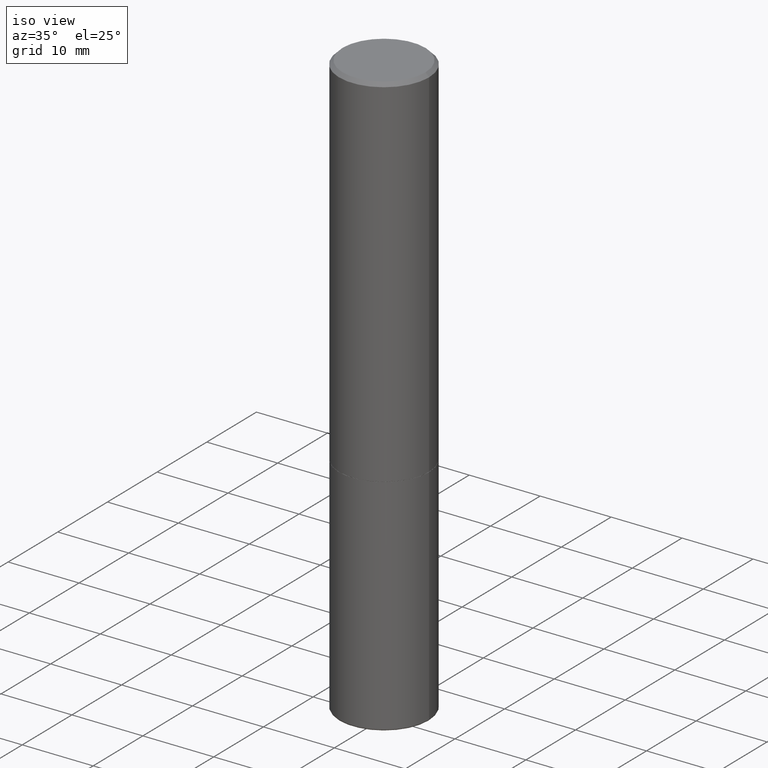
[diagram: clean part render]
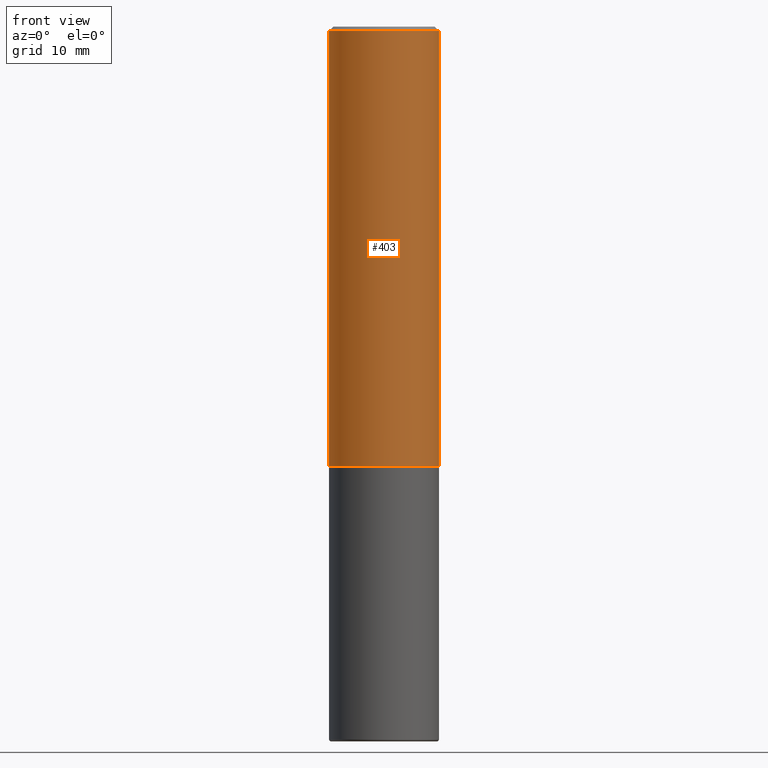
[diagram: tour spotlight — one face highlighted and labeled with its STEP entity id]
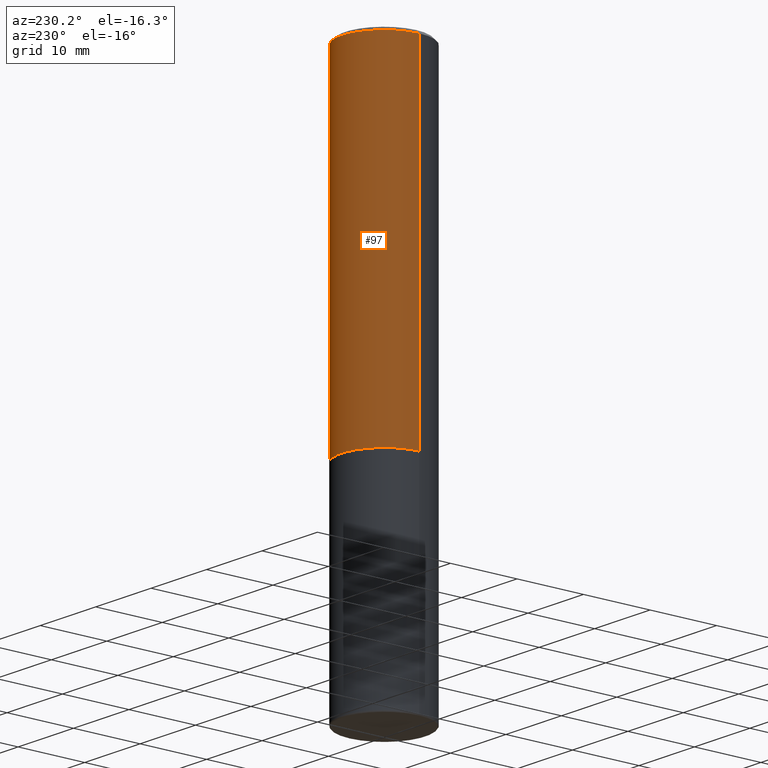
[diagram: tour spotlight — one face highlighted and labeled with its STEP entity id]
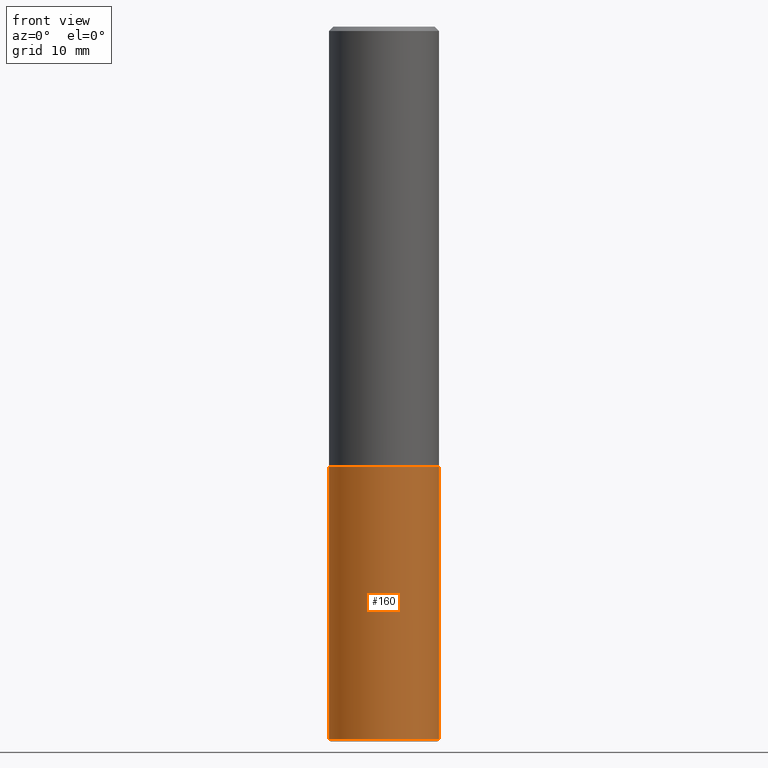
[diagram: tour spotlight — one face highlighted and labeled with its STEP entity id]
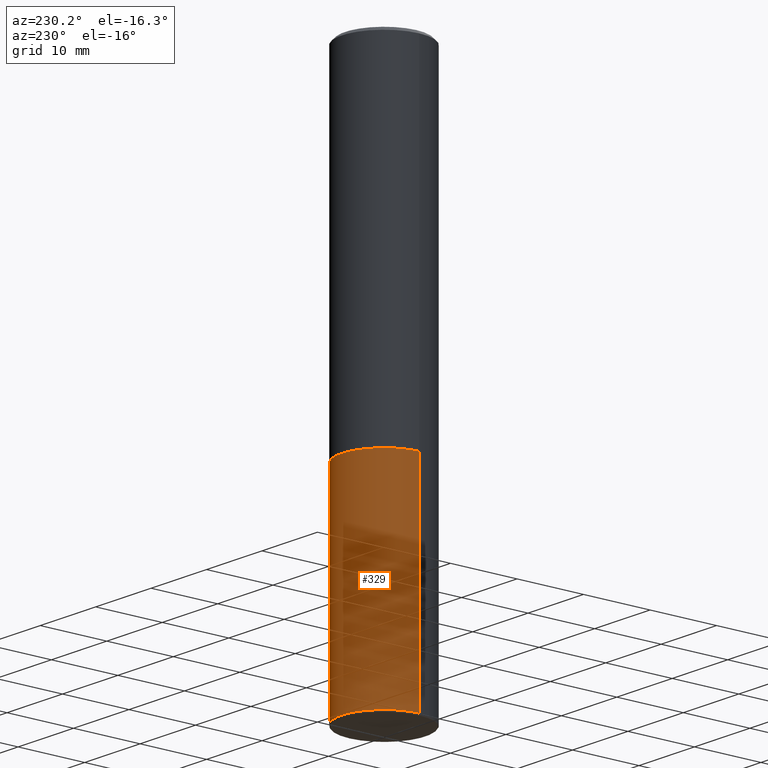
[diagram: tour spotlight — one face highlighted and labeled with its STEP entity id]
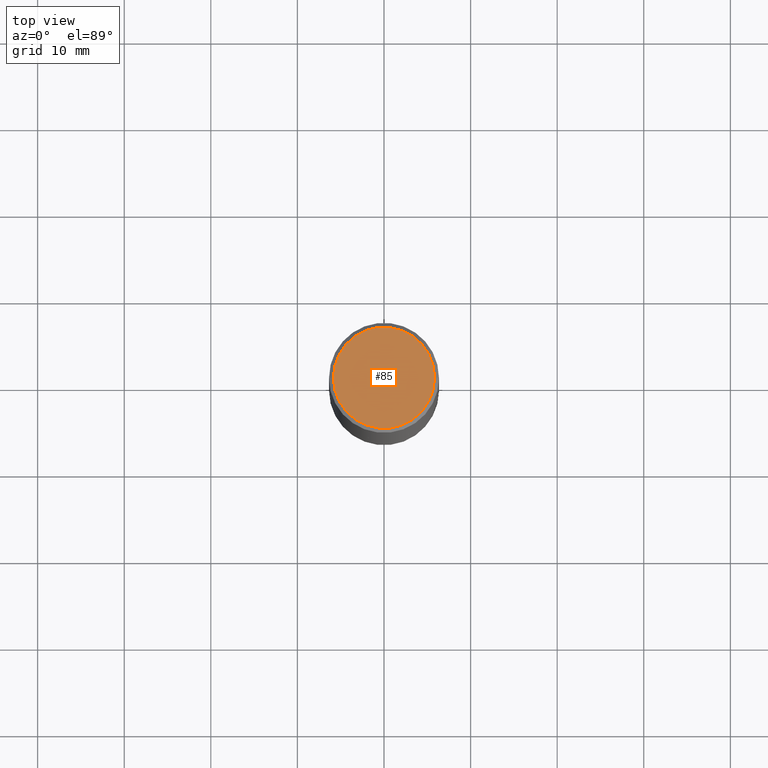
[diagram: tour spotlight — one face highlighted and labeled with its STEP entity id]
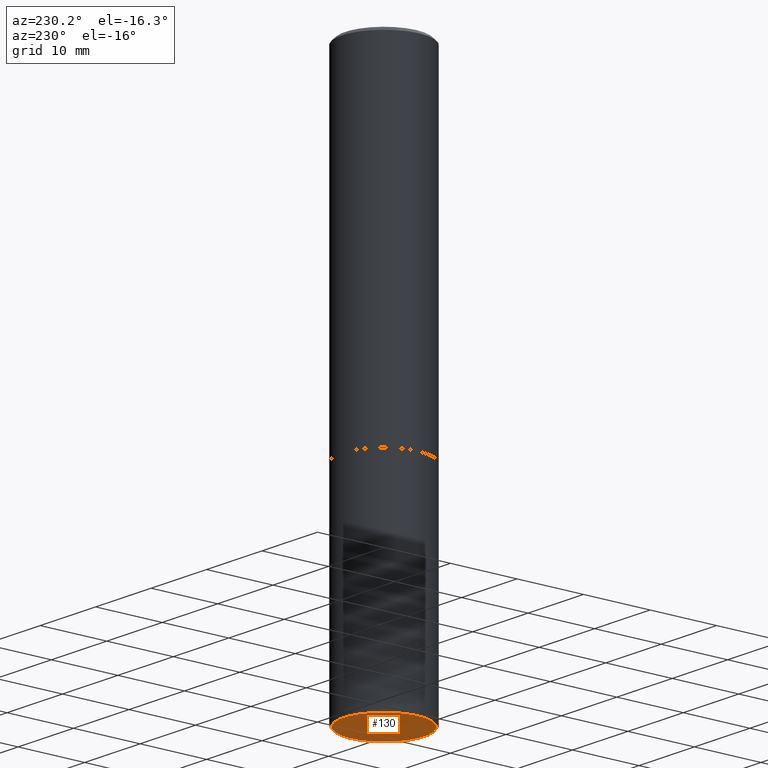
[diagram: tour spotlight — one face highlighted and labeled with its STEP entity id]
A machine part: a face-by-face anatomy tour. The part has 14 B-rep faces; the first image is the clean iso view, then the 6 largest visible faces are spotlighted one at a time (largest first), each with its STEP entity span.

Face 1 — front view, entity #403. In plain terms, the highlighted cylindrical surface (partial cylindrical patch) has radius 6.35 mm, axis along (-0, 0, 1).
Definition (entity closure, byte-faithful):
#13 = CYLINDRICAL_SURFACE ( 'NONE', #321, 0.2500000000000001110 ) ;
#15 = FACE_OUTER_BOUND ( 'NONE', #61, .T. ) ;
#16 = VECTOR ( 'NONE', #74, 39.37007874015748143 ) ;
#34 = CARTESIAN_POINT ( 'NONE',  ( 4.888492143564088712E-29, -6.979471196347448158E-15, -1.999000000000000110 ) ) ;
#38 = DIRECTION ( 'NONE',  ( 1.000000000000000000, -6.982962677686267499E-15, 4.876176775795936353E-29 ) ) ;
#52 = CIRCLE ( 'NONE', #343, 0.2500000000000002220 ) ;
#61 = EDGE_LOOP ( 'NONE', ( #326, #121, #188, #327 ) ) ;
#74 = DIRECTION ( 'NONE',  ( -2.445468806185136877E-29, 3.491481338843145188E-15, 1.000000000000000000 ) ) ;
#89 = DIRECTION ( 'NONE',  ( -2.445468806185136597E-29, 3.491481338843145583E-15, 1.000000000000000000 ) ) ;
#93 = VERTEX_POINT ( 'NONE', #270 ) ;
#99 = LINE ( 'NONE', #170, #16 ) ;
#109 = CARTESIAN_POINT ( 'NONE',  ( -0.2500000000000000000, 1.675911042644703577E-15, -0.02000000000000005593 ) ) ;
#116 = CARTESIAN_POINT ( 'NONE',  ( 4.890937612370287172E-31, -6.982962677686310098E-17, -0.02000000000000005593 ) ) ;
#117 = AXIS2_PLACEMENT_3D ( 'NONE', #116, #89, #158 ) ;
#118 = VERTEX_POINT ( 'NONE', #109 ) ;
#121 = ORIENTED_EDGE ( 'NONE', *, *, #189, .T. ) ;
#123 = DIRECTION ( 'NONE',  ( -2.445468806185136597E-29, 3.491481338843145583E-15, 1.000000000000000000 ) ) ;
#125 = DIRECTION ( 'NONE',  ( -2.445468806185136877E-29, 3.491481338843145188E-15, 1.000000000000000000 ) ) ;
#150 = LINE ( 'NONE', #153, #320 ) ;
#153 = CARTESIAN_POINT ( 'NONE',  ( 0.2500000000000001110, -1.745740669421567664E-15, 1.219044193948984649E-29 ) ) ;
#156 = EDGE_CURVE ( 'NONE', #252, #93, #150, .T. ) ;
#158 = DIRECTION ( 'NONE',  ( 1.000000000000000000, -6.982962677686266711E-15, 0.000000000000000000 ) ) ;
#168 = CARTESIAN_POINT ( 'NONE',  ( -0.2500000000000002220, -1.748293572161901516E-15, -1.999000000000000110 ) ) ;
#170 = CARTESIAN_POINT ( 'NONE',  ( -0.2500000000000001110, 1.776356839400251254E-15, -1.229733772563727146E-29 ) ) ;
#188 = ORIENTED_EDGE ( 'NONE', *, *, #156, .T. ) ;
#189 = EDGE_CURVE ( 'NONE', #357, #252, #52, .T. ) ;
#190 = CARTESIAN_POINT ( 'NONE',  ( 0.2500000000000002220, -8.725211865769017202E-15, -1.999000000000000110 ) ) ;
#193 = CARTESIAN_POINT ( 'NONE',  ( 0.000000000000000000, 0.000000000000000000, 0.000000000000000000 ) ) ;
#210 = DIRECTION ( 'NONE',  ( 1.000000000000000000, -6.982962677686268288E-15, 0.000000000000000000 ) ) ;
#252 = VERTEX_POINT ( 'NONE', #190 ) ;
#267 = EDGE_CURVE ( 'NONE', #118, #93, #360, .T. ) ;
#270 = CARTESIAN_POINT ( 'NONE',  ( 0.2500000000000000000, -1.784954126219746189E-15, -0.02000000000000005593 ) ) ;
#319 = DIRECTION ( 'NONE',  ( -2.445468806185136597E-29, 3.491481338843145583E-15, 1.000000000000000000 ) ) ;
#320 = VECTOR ( 'NONE', #125, 39.37007874015748143 ) ;
#321 = AXIS2_PLACEMENT_3D ( 'NONE', #193, #319, #38 ) ;
#326 = ORIENTED_EDGE ( 'NONE', *, *, #374, .F. ) ;
#327 = ORIENTED_EDGE ( 'NONE', *, *, #267, .F. ) ;
#343 = AXIS2_PLACEMENT_3D ( 'NONE', #34, #123, #210 ) ;
#357 = VERTEX_POINT ( 'NONE', #168 ) ;
#360 = CIRCLE ( 'NONE', #117, 0.2500000000000000000 ) ;
#374 = EDGE_CURVE ( 'NONE', #357, #118, #99, .T. ) ;
#403 = ADVANCED_FACE ( 'NONE', ( #15 ), #13, .T. ) ;

Face 2 — auxiliary view, entity #97. In plain terms, the highlighted cylindrical surface (partial cylindrical patch) has radius 6.35 mm, axis along (-0, 0, 1).
Definition (entity closure, byte-faithful):
#10 = AXIS2_PLACEMENT_3D ( 'NONE', #137, #266, #404 ) ;
#16 = VECTOR ( 'NONE', #74, 39.37007874015748143 ) ;
#19 = CYLINDRICAL_SURFACE ( 'NONE', #10, 0.2500000000000001110 ) ;
#25 = DIRECTION ( 'NONE',  ( 1.000000000000000000, -6.982962677686266711E-15, 0.000000000000000000 ) ) ;
#32 = ORIENTED_EDGE ( 'NONE', *, *, #374, .T. ) ;
#33 = EDGE_CURVE ( 'NONE', #93, #118, #351, .T. ) ;
#47 = FACE_OUTER_BOUND ( 'NONE', #386, .T. ) ;
#58 = AXIS2_PLACEMENT_3D ( 'NONE', #237, #151, #72 ) ;
#72 = DIRECTION ( 'NONE',  ( 1.000000000000000000, -6.982962677686268288E-15, 0.000000000000000000 ) ) ;
#74 = DIRECTION ( 'NONE',  ( -2.445468806185136877E-29, 3.491481338843145188E-15, 1.000000000000000000 ) ) ;
#93 = VERTEX_POINT ( 'NONE', #270 ) ;
#97 = ADVANCED_FACE ( 'NONE', ( #47 ), #19, .T. ) ;
#99 = LINE ( 'NONE', #170, #16 ) ;
#109 = CARTESIAN_POINT ( 'NONE',  ( -0.2500000000000000000, 1.675911042644703577E-15, -0.02000000000000005593 ) ) ;
#118 = VERTEX_POINT ( 'NONE', #109 ) ;
#125 = DIRECTION ( 'NONE',  ( -2.445468806185136877E-29, 3.491481338843145188E-15, 1.000000000000000000 ) ) ;
#126 = EDGE_CURVE ( 'NONE', #252, #357, #233, .T. ) ;
#137 = CARTESIAN_POINT ( 'NONE',  ( 0.000000000000000000, 0.000000000000000000, 0.000000000000000000 ) ) ;
#150 = LINE ( 'NONE', #153, #320 ) ;
#151 = DIRECTION ( 'NONE',  ( -2.445468806185136597E-29, 3.491481338843145583E-15, 1.000000000000000000 ) ) ;
#153 = CARTESIAN_POINT ( 'NONE',  ( 0.2500000000000001110, -1.745740669421567664E-15, 1.219044193948984649E-29 ) ) ;
#156 = EDGE_CURVE ( 'NONE', #252, #93, #150, .T. ) ;
#168 = CARTESIAN_POINT ( 'NONE',  ( -0.2500000000000002220, -1.748293572161901516E-15, -1.999000000000000110 ) ) ;
#170 = CARTESIAN_POINT ( 'NONE',  ( -0.2500000000000001110, 1.776356839400251254E-15, -1.229733772563727146E-29 ) ) ;
#175 = DIRECTION ( 'NONE',  ( -2.445468806185136597E-29, 3.491481338843145583E-15, 1.000000000000000000 ) ) ;
#190 = CARTESIAN_POINT ( 'NONE',  ( 0.2500000000000002220, -8.725211865769017202E-15, -1.999000000000000110 ) ) ;
#233 = CIRCLE ( 'NONE', #58, 0.2500000000000002220 ) ;
#237 = CARTESIAN_POINT ( 'NONE',  ( 4.888492143564088712E-29, -6.979471196347448158E-15, -1.999000000000000110 ) ) ;
#248 = ORIENTED_EDGE ( 'NONE', *, *, #33, .F. ) ;
#252 = VERTEX_POINT ( 'NONE', #190 ) ;
#261 = AXIS2_PLACEMENT_3D ( 'NONE', #408, #175, #25 ) ;
#266 = DIRECTION ( 'NONE',  ( -2.445468806185136597E-29, 3.491481338843145583E-15, 1.000000000000000000 ) ) ;
#270 = CARTESIAN_POINT ( 'NONE',  ( 0.2500000000000000000, -1.784954126219746189E-15, -0.02000000000000005593 ) ) ;
#279 = ORIENTED_EDGE ( 'NONE', *, *, #126, .T. ) ;
#320 = VECTOR ( 'NONE', #125, 39.37007874015748143 ) ;
#351 = CIRCLE ( 'NONE', #261, 0.2500000000000000000 ) ;
#357 = VERTEX_POINT ( 'NONE', #168 ) ;
#374 = EDGE_CURVE ( 'NONE', #357, #118, #99, .T. ) ;
#386 = EDGE_LOOP ( 'NONE', ( #279, #32, #248, #399 ) ) ;
#399 = ORIENTED_EDGE ( 'NONE', *, *, #156, .F. ) ;
#404 = DIRECTION ( 'NONE',  ( 1.000000000000000000, -6.982962677686267499E-15, 4.876176775795936353E-29 ) ) ;
#408 = CARTESIAN_POINT ( 'NONE',  ( 4.890937612370287172E-31, -6.982962677686310098E-17, -0.02000000000000005593 ) ) ;

Face 3 — front view, entity #160. In plain terms, the highlighted cylindrical surface (partial cylindrical patch) has radius 6.35 mm, axis along (-0, 0, 1).
Definition (entity closure, byte-faithful):
#8 = EDGE_CURVE ( 'NONE', #212, #257, #44, .T. ) ;
#37 = VECTOR ( 'NONE', #356, 39.37007874015748143 ) ;
#43 = LINE ( 'NONE', #67, #301 ) ;
#44 = CIRCLE ( 'NONE', #395, 0.2500000000000000000 ) ;
#62 = CARTESIAN_POINT ( 'NONE',  ( 0.000000000000000000, 0.000000000000000000, 0.000000000000000000 ) ) ;
#67 = CARTESIAN_POINT ( 'NONE',  ( -0.2500000000000000000, 1.776356839400250465E-15, -1.229733772563726445E-29 ) ) ;
#81 = CARTESIAN_POINT ( 'NONE',  ( 4.890937612370273754E-29, -6.982962677686291954E-15, -2.000000000000000444 ) ) ;
#98 = DIRECTION ( 'NONE',  ( -2.445468806185136597E-29, 3.491481338843145583E-15, 1.000000000000000000 ) ) ;
#129 = DIRECTION ( 'NONE',  ( 1.000000000000000000, -6.982962677686270655E-15, 0.000000000000000000 ) ) ;
#145 = DIRECTION ( 'NONE',  ( 1.000000000000000000, -6.982962677686266711E-15, 0.000000000000000000 ) ) ;
#152 = CYLINDRICAL_SURFACE ( 'NONE', #379, 0.2500000000000000000 ) ;
#155 = EDGE_LOOP ( 'NONE', ( #201, #245, #227, #382 ) ) ;
#160 = ADVANCED_FACE ( 'NONE', ( #387 ), #152, .T. ) ;
#171 = CIRCLE ( 'NONE', #203, 0.2500000000000000000 ) ;
#185 = CARTESIAN_POINT ( 'NONE',  ( 0.2499999999999998890, -1.305814020727335945E-14, -3.239999999999999769 ) ) ;
#197 = CARTESIAN_POINT ( 'NONE',  ( 0.2500000000000000000, -1.745740669421566678E-15, 1.219044193948983948E-29 ) ) ;
#201 = ORIENTED_EDGE ( 'NONE', *, *, #392, .F. ) ;
#203 = AXIS2_PLACEMENT_3D ( 'NONE', #318, #98, #129 ) ;
#212 = VERTEX_POINT ( 'NONE', #354 ) ;
#213 = VERTEX_POINT ( 'NONE', #185 ) ;
#227 = ORIENTED_EDGE ( 'NONE', *, *, #385, .T. ) ;
#245 = ORIENTED_EDGE ( 'NONE', *, *, #335, .T. ) ;
#257 = VERTEX_POINT ( 'NONE', #353 ) ;
#278 = CARTESIAN_POINT ( 'NONE',  ( -0.2499999999999998890, -9.536042698451540734E-15, -3.239999999999999769 ) ) ;
#280 = VERTEX_POINT ( 'NONE', #278 ) ;
#301 = VECTOR ( 'NONE', #361, 39.37007874015748143 ) ;
#311 = DIRECTION ( 'NONE',  ( 1.000000000000000000, -6.982962677686266711E-15, 4.876176775795935793E-29 ) ) ;
#317 = DIRECTION ( 'NONE',  ( -2.445468806185136597E-29, 3.491481338843145583E-15, 1.000000000000000000 ) ) ;
#318 = CARTESIAN_POINT ( 'NONE',  ( 7.923318932039842394E-29, -1.131239953785179120E-14, -3.239999999999999769 ) ) ;
#335 = EDGE_CURVE ( 'NONE', #280, #213, #171, .T. ) ;
#338 = DIRECTION ( 'NONE',  ( -2.445468806185136597E-29, 3.491481338843145583E-15, 1.000000000000000000 ) ) ;
#353 = CARTESIAN_POINT ( 'NONE',  ( 0.2500000000000000000, -8.728703347107858632E-15, -2.000000000000000444 ) ) ;
#354 = CARTESIAN_POINT ( 'NONE',  ( -0.2500000000000000000, -7.371324268368791112E-15, -2.000000000000000444 ) ) ;
#356 = DIRECTION ( 'NONE',  ( -2.445468806185136877E-29, 3.491481338843145188E-15, 1.000000000000000000 ) ) ;
#361 = DIRECTION ( 'NONE',  ( -2.445468806185136877E-29, 3.491481338843145188E-15, 1.000000000000000000 ) ) ;
#379 = AXIS2_PLACEMENT_3D ( 'NONE', #62, #317, #311 ) ;
#382 = ORIENTED_EDGE ( 'NONE', *, *, #8, .F. ) ;
#385 = EDGE_CURVE ( 'NONE', #213, #257, #391, .T. ) ;
#387 = FACE_OUTER_BOUND ( 'NONE', #155, .T. ) ;
#391 = LINE ( 'NONE', #197, #37 ) ;
#392 = EDGE_CURVE ( 'NONE', #280, #212, #43, .T. ) ;
#395 = AXIS2_PLACEMENT_3D ( 'NONE', #81, #338, #145 ) ;

Face 4 — auxiliary view, entity #329. In plain terms, the highlighted cylindrical surface (partial cylindrical patch) has radius 6.35 mm, axis along (-0, 0, 1).
Definition (entity closure, byte-faithful):
#3 = CARTESIAN_POINT ( 'NONE',  ( 4.890937612370273754E-29, -6.982962677686291954E-15, -2.000000000000000444 ) ) ;
#9 = ORIENTED_EDGE ( 'NONE', *, *, #385, .F. ) ;
#37 = VECTOR ( 'NONE', #356, 39.37007874015748143 ) ;
#43 = LINE ( 'NONE', #67, #301 ) ;
#59 = DIRECTION ( 'NONE',  ( 1.000000000000000000, -6.982962677686266711E-15, 0.000000000000000000 ) ) ;
#63 = CIRCLE ( 'NONE', #142, 0.2500000000000000000 ) ;
#67 = CARTESIAN_POINT ( 'NONE',  ( -0.2500000000000000000, 1.776356839400250465E-15, -1.229733772563726445E-29 ) ) ;
#69 = AXIS2_PLACEMENT_3D ( 'NONE', #394, #101, #76 ) ;
#75 = EDGE_LOOP ( 'NONE', ( #127, #163, #79, #9 ) ) ;
#76 = DIRECTION ( 'NONE',  ( 1.000000000000000000, -6.982962677686266711E-15, 4.876176775795935793E-29 ) ) ;
#79 = ORIENTED_EDGE ( 'NONE', *, *, #157, .F. ) ;
#101 = DIRECTION ( 'NONE',  ( -2.445468806185136597E-29, 3.491481338843145583E-15, 1.000000000000000000 ) ) ;
#127 = ORIENTED_EDGE ( 'NONE', *, *, #310, .T. ) ;
#142 = AXIS2_PLACEMENT_3D ( 'NONE', #3, #253, #59 ) ;
#157 = EDGE_CURVE ( 'NONE', #257, #212, #63, .T. ) ;
#163 = ORIENTED_EDGE ( 'NONE', *, *, #392, .T. ) ;
#172 = CARTESIAN_POINT ( 'NONE',  ( 7.923318932039842394E-29, -1.131239953785179120E-14, -3.239999999999999769 ) ) ;
#185 = CARTESIAN_POINT ( 'NONE',  ( 0.2499999999999998890, -1.305814020727335945E-14, -3.239999999999999769 ) ) ;
#197 = CARTESIAN_POINT ( 'NONE',  ( 0.2500000000000000000, -1.745740669421566678E-15, 1.219044193948983948E-29 ) ) ;
#212 = VERTEX_POINT ( 'NONE', #354 ) ;
#213 = VERTEX_POINT ( 'NONE', #185 ) ;
#253 = DIRECTION ( 'NONE',  ( -2.445468806185136597E-29, 3.491481338843145583E-15, 1.000000000000000000 ) ) ;
#257 = VERTEX_POINT ( 'NONE', #353 ) ;
#260 = DIRECTION ( 'NONE',  ( -2.445468806185136597E-29, 3.491481338843145583E-15, 1.000000000000000000 ) ) ;
#264 = FACE_OUTER_BOUND ( 'NONE', #75, .T. ) ;
#278 = CARTESIAN_POINT ( 'NONE',  ( -0.2499999999999998890, -9.536042698451540734E-15, -3.239999999999999769 ) ) ;
#280 = VERTEX_POINT ( 'NONE', #278 ) ;
#301 = VECTOR ( 'NONE', #361, 39.37007874015748143 ) ;
#310 = EDGE_CURVE ( 'NONE', #213, #280, #314, .T. ) ;
#314 = CIRCLE ( 'NONE', #388, 0.2500000000000000000 ) ;
#329 = ADVANCED_FACE ( 'NONE', ( #264 ), #364, .T. ) ;
#353 = CARTESIAN_POINT ( 'NONE',  ( 0.2500000000000000000, -8.728703347107858632E-15, -2.000000000000000444 ) ) ;
#354 = CARTESIAN_POINT ( 'NONE',  ( -0.2500000000000000000, -7.371324268368791112E-15, -2.000000000000000444 ) ) ;
#356 = DIRECTION ( 'NONE',  ( -2.445468806185136877E-29, 3.491481338843145188E-15, 1.000000000000000000 ) ) ;
#361 = DIRECTION ( 'NONE',  ( -2.445468806185136877E-29, 3.491481338843145188E-15, 1.000000000000000000 ) ) ;
#364 = CYLINDRICAL_SURFACE ( 'NONE', #69, 0.2500000000000000000 ) ;
#385 = EDGE_CURVE ( 'NONE', #213, #257, #391, .T. ) ;
#388 = AXIS2_PLACEMENT_3D ( 'NONE', #172, #260, #398 ) ;
#391 = LINE ( 'NONE', #197, #37 ) ;
#392 = EDGE_CURVE ( 'NONE', #280, #212, #43, .T. ) ;
#394 = CARTESIAN_POINT ( 'NONE',  ( 0.000000000000000000, 0.000000000000000000, 0.000000000000000000 ) ) ;
#398 = DIRECTION ( 'NONE',  ( 1.000000000000000000, -6.982962677686270655E-15, 0.000000000000000000 ) ) ;

Face 5 — top view, entity #85. In plain terms, the highlighted planar face has unit normal (0, -0, -1).
Definition (entity closure, byte-faithful):
#31 = DIRECTION ( 'NONE',  ( -2.445468806185136597E-29, 3.491481338843145583E-15, 1.000000000000000000 ) ) ;
#56 = DIRECTION ( 'NONE',  ( 2.438088387897960049E-29, -3.491481338843145188E-15, -1.000000000000000000 ) ) ;
#71 = CARTESIAN_POINT ( 'NONE',  ( 0.2299999999999999267, -1.681434332853598617E-15, 4.695363739111602110E-17 ) ) ;
#77 = AXIS2_PLACEMENT_3D ( 'NONE', #220, #284, #165 ) ;
#85 = ADVANCED_FACE ( 'NONE', ( #111 ), #296, .F. ) ;
#111 = FACE_OUTER_BOUND ( 'NONE', #372, .T. ) ;
#165 = DIRECTION ( 'NONE',  ( 1.000000000000000000, -6.982962677686267499E-15, 4.875813741439101456E-29 ) ) ;
#167 = CIRCLE ( 'NONE', #223, 0.2299999999999999267 ) ;
#173 = ORIENTED_EDGE ( 'NONE', *, *, #259, .T. ) ;
#184 = CARTESIAN_POINT ( 'NONE',  ( -1.148236555768741665E-45, 1.639377487418492057E-31, 4.695363739110452099E-17 ) ) ;
#198 = AXIS2_PLACEMENT_3D ( 'NONE', #243, #56, #363 ) ;
#220 = CARTESIAN_POINT ( 'NONE',  ( -1.148236555768741665E-45, 1.639377487418492057E-31, 4.695363739110452099E-17 ) ) ;
#223 = AXIS2_PLACEMENT_3D ( 'NONE', #184, #31, #315 ) ;
#239 = ORIENTED_EDGE ( 'NONE', *, *, #384, .T. ) ;
#243 = CARTESIAN_POINT ( 'NONE',  ( 1.606081415867840870E-15, 0.2299999999999999267, -7.795638892383710465E-16 ) ) ;
#251 = CARTESIAN_POINT ( 'NONE',  ( -0.2299999999999999267, 1.640996229256272519E-15, 4.695363739109317495E-17 ) ) ;
#259 = EDGE_CURVE ( 'NONE', #369, #263, #167, .T. ) ;
#263 = VERTEX_POINT ( 'NONE', #251 ) ;
#284 = DIRECTION ( 'NONE',  ( -2.445468806185136597E-29, 3.491481338843145583E-15, 1.000000000000000000 ) ) ;
#296 = PLANE ( 'NONE',  #198 ) ;
#309 = CIRCLE ( 'NONE', #77, 0.2299999999999999267 ) ;
#315 = DIRECTION ( 'NONE',  ( 1.000000000000000000, -6.982962677686267499E-15, 4.875813741439101456E-29 ) ) ;
#363 = DIRECTION ( 'NONE',  ( -1.000000000000000000, 6.982962677686265922E-15, -4.876176775795935793E-29 ) ) ;
#369 = VERTEX_POINT ( 'NONE', #71 ) ;
#372 = EDGE_LOOP ( 'NONE', ( #239, #173 ) ) ;
#384 = EDGE_CURVE ( 'NONE', #263, #369, #309, .T. ) ;

Face 6 — auxiliary view, entity #130. In plain terms, the highlighted planar face has unit normal (0, -0, -1).
Definition (entity closure, byte-faithful):
#18 = VERTEX_POINT ( 'NONE', #53 ) ;
#26 = DIRECTION ( 'NONE',  ( 2.438088387897960049E-29, -3.491481338843145188E-15, -1.000000000000000000 ) ) ;
#29 = VERTEX_POINT ( 'NONE', #180 ) ;
#53 = CARTESIAN_POINT ( 'NONE',  ( 0.2399999999999999911, -1.302322539388492623E-14, -3.249999999999999556 ) ) ;
#84 = EDGE_CURVE ( 'NONE', #29, #18, #128, .T. ) ;
#87 = ORIENTED_EDGE ( 'NONE', *, *, #265, .F. ) ;
#100 = AXIS2_PLACEMENT_3D ( 'NONE', #275, #416, #381 ) ;
#128 = CIRCLE ( 'NONE', #215, 0.2399999999999999911 ) ;
#130 = ADVANCED_FACE ( 'NONE', ( #376 ), #312, .T. ) ;
#180 = CARTESIAN_POINT ( 'NONE',  ( -0.2399999999999999911, -9.589027241933761599E-15, -3.249999999999999556 ) ) ;
#194 = CIRCLE ( 'NONE', #100, 0.2399999999999999911 ) ;
#207 = DIRECTION ( 'NONE',  ( -2.445468806185136597E-29, 3.491481338843145583E-15, 1.000000000000000000 ) ) ;
#215 = AXIS2_PLACEMENT_3D ( 'NONE', #271, #207, #299 ) ;
#231 = EDGE_LOOP ( 'NONE', ( #87, #345 ) ) ;
#241 = AXIS2_PLACEMENT_3D ( 'NONE', #402, #26, #346 ) ;
#265 = EDGE_CURVE ( 'NONE', #18, #29, #194, .T. ) ;
#271 = CARTESIAN_POINT ( 'NONE',  ( 7.947773620101692818E-29, -1.134731435124022127E-14, -3.249999999999999556 ) ) ;
#275 = CARTESIAN_POINT ( 'NONE',  ( 7.947773620101692818E-29, -1.134731435124022127E-14, -3.249999999999999556 ) ) ;
#299 = DIRECTION ( 'NONE',  ( 1.000000000000000000, -6.982962677686268288E-15, 0.000000000000000000 ) ) ;
#312 = PLANE ( 'NONE',  #241 ) ;
#345 = ORIENTED_EDGE ( 'NONE', *, *, #84, .F. ) ;
#346 = DIRECTION ( 'NONE',  ( -1.000000000000000000, 6.982962677686265922E-15, -4.876176775795935793E-29 ) ) ;
#376 = FACE_OUTER_BOUND ( 'NONE', #231, .T. ) ;
#381 = DIRECTION ( 'NONE',  ( 1.000000000000000000, -6.982962677686268288E-15, 0.000000000000000000 ) ) ;
#402 = CARTESIAN_POINT ( 'NONE',  ( 1.311429661075389283E-28, -3.948559368399508239E-15, -3.249999999999999556 ) ) ;
#416 = DIRECTION ( 'NONE',  ( -2.445468806185136597E-29, 3.491481338843145583E-15, 1.000000000000000000 ) ) ;